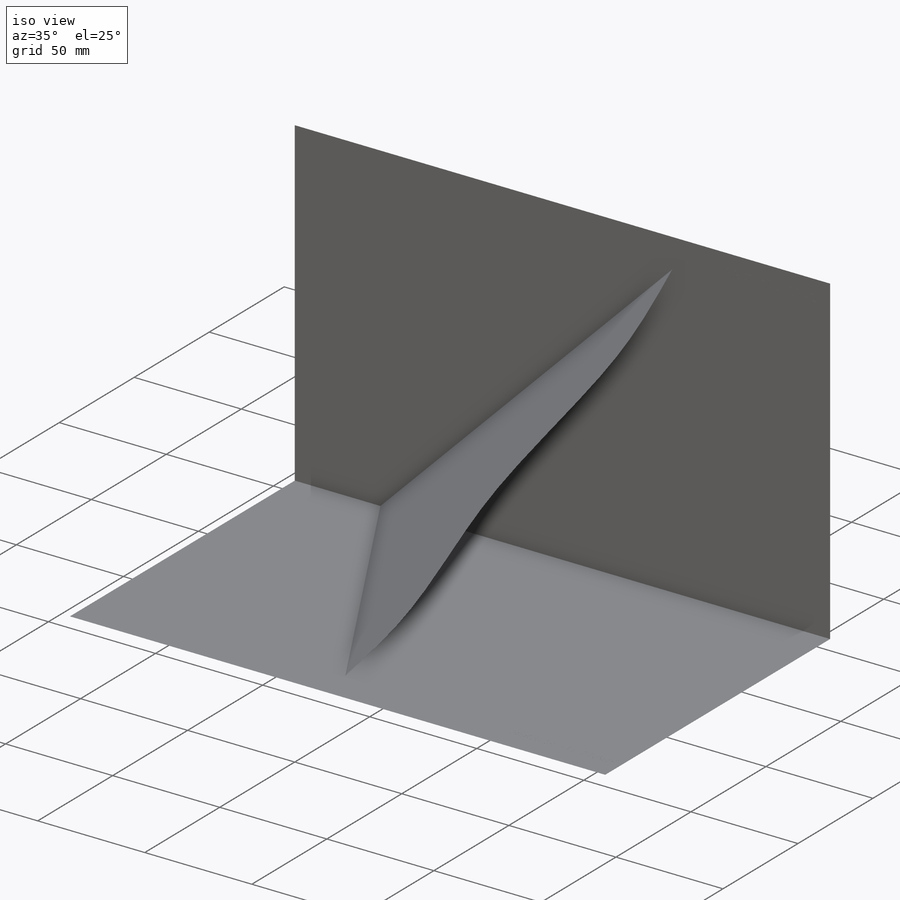
[diagram: iso view]
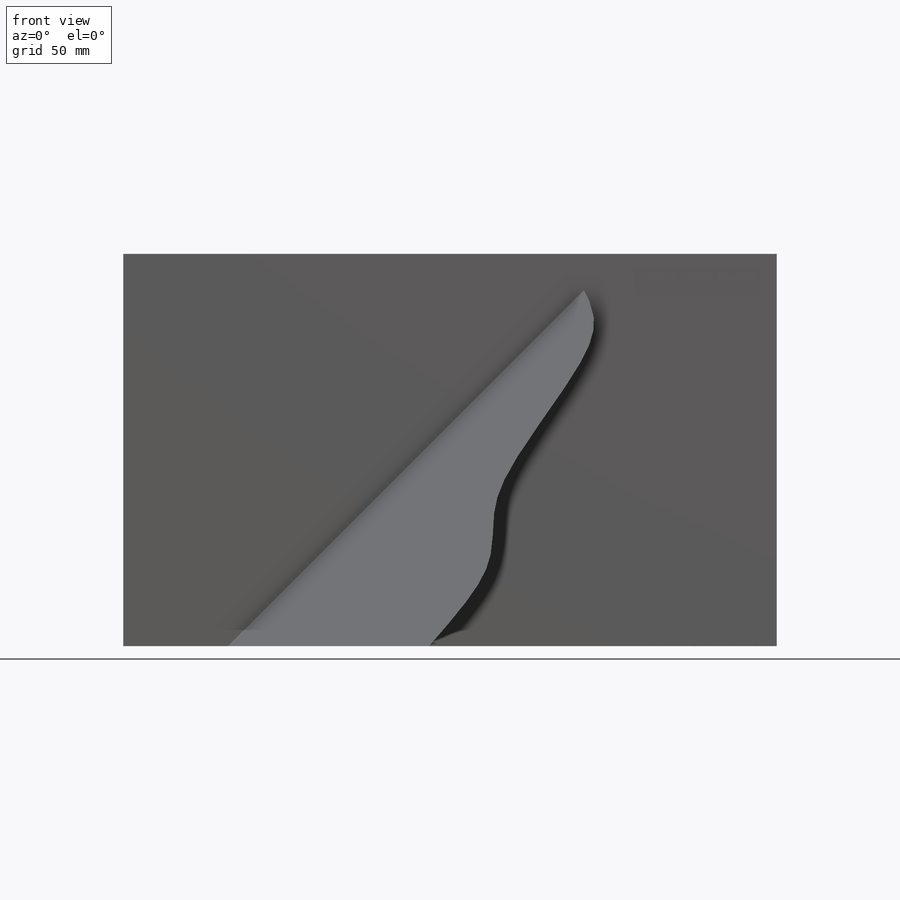
[diagram: front view]
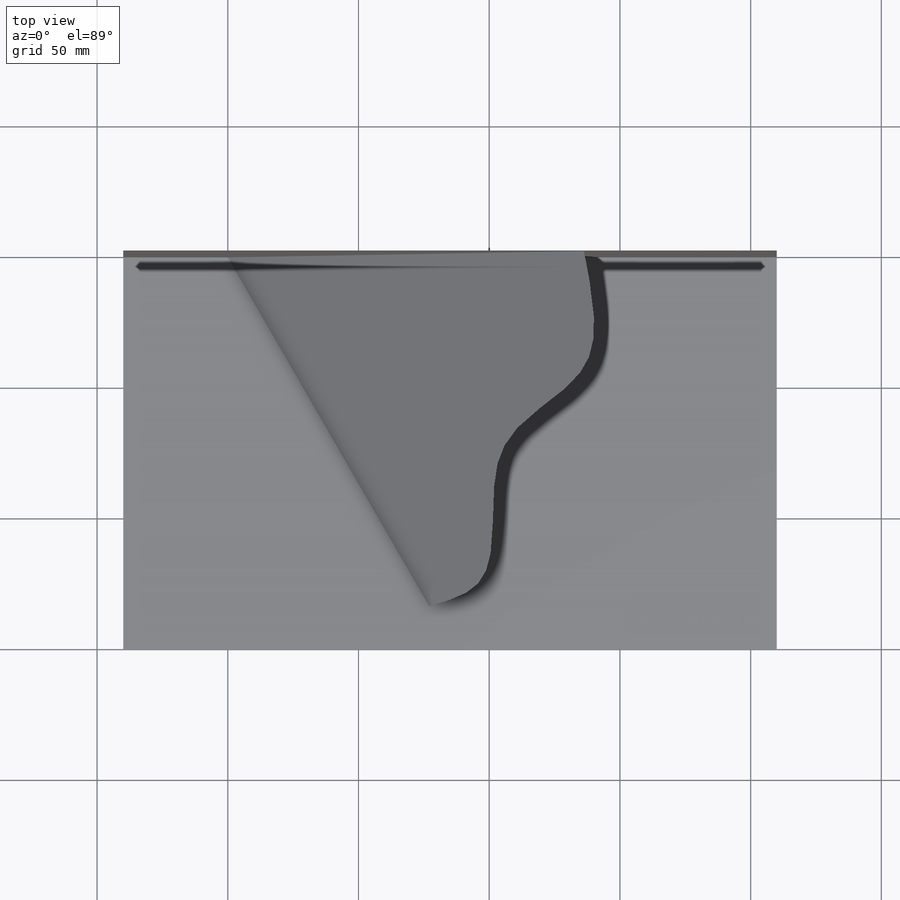
[diagram: top view]
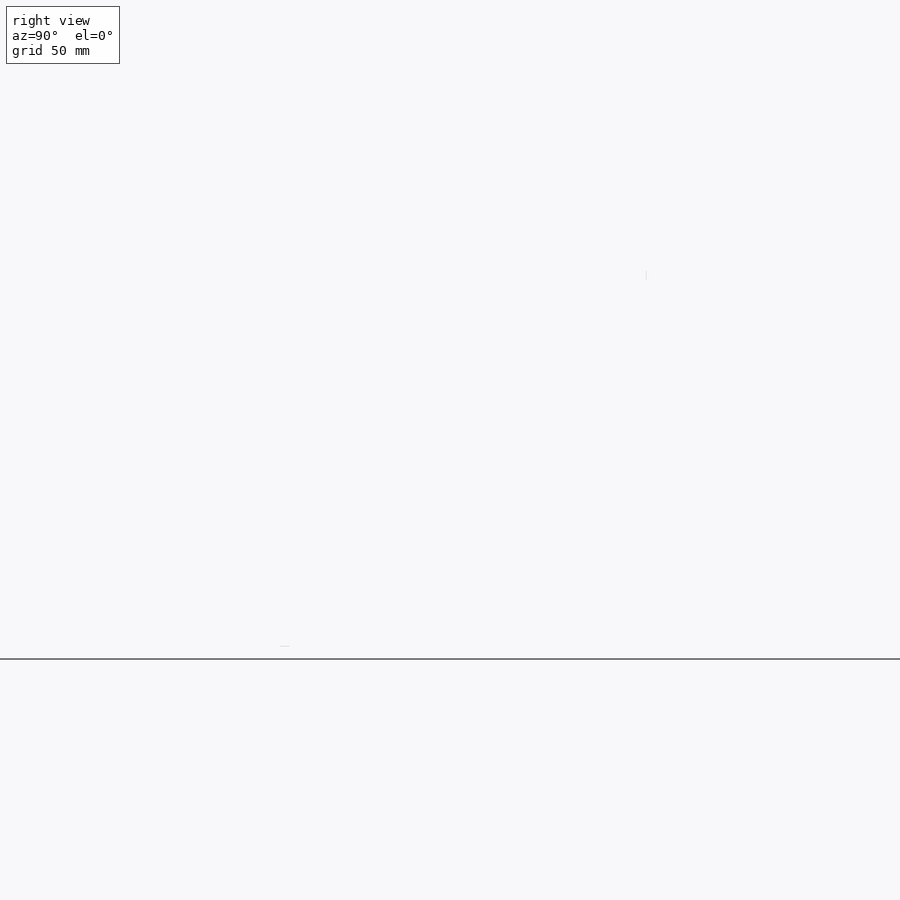
[diagram: right view]
SOLIDWORKS PART (.sldprt)
format: sldprt  version: not decoded by parser v0  size: 795,648 bytes
history: native  units: mm
features: sketch x8, extrude x2, plane x2, material x1 (+13 scaffold rows collapsed)
feature tree (26):
  scaffold x13  (default folders/planes/origin — collapsed)
  material  "Material <not specified>"
  sketch  "Sketch1"  dims[D1=250.0mm D2=150.0mm D3=40.0mm]
  sketch  "Sketch6"  dims[D1=10.0mm D2=55.0mm]
  extrude  "Vertical  Plane text"  Depth=0.01mm
  sketch  "Sketch2"  dims[D1=250.0mm D2=150.0mm]
  sketch  "Sketch7"  dims[D1=10.0mm D2=55.0mm]
  extrude  "Horizontal Plane text"  Depth=0.01mm
  sketch  "Vertical Trace"  dims[c1.D1=~131.802059mm c2.D1=45.0deg]
  sketch  "Horizontal Trace"  dims[c1.D1=250.0mm c2.D1=60.0deg]
  plane  "Oblique Plane"
  sketch  "Sketch5"
  sketch  "Direction of Horizontal Trace"  dims[D1=25.0mm]
  plane  "Auxiliary Plane"
decode coverage: 9 of 10 modeling features carry decoded parameters
note: ~ marks probable driven/reference dimensions
note: suppression state not decoded; provenance and decode notes live in map.json
